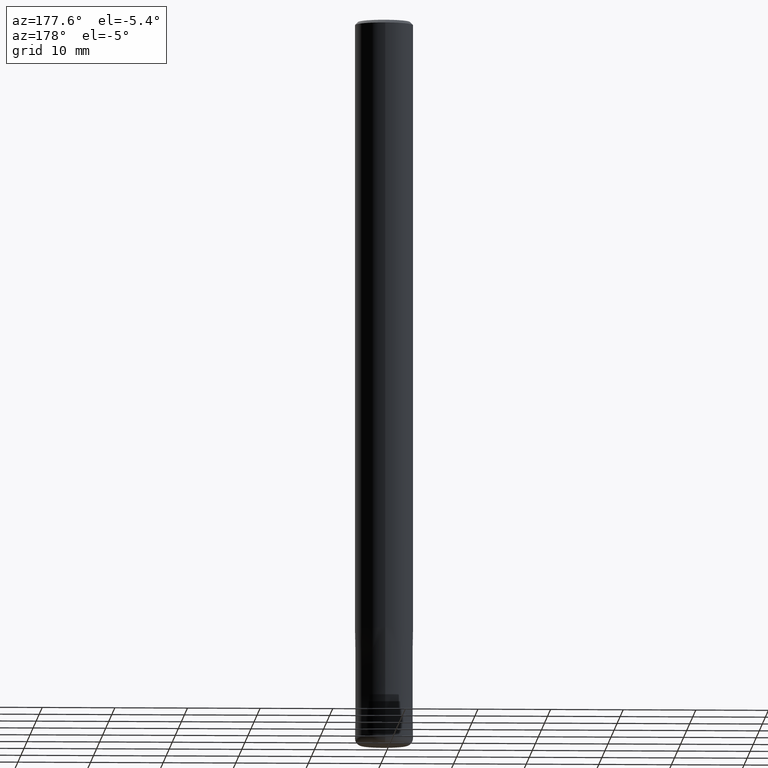
[diagram: clean part render]
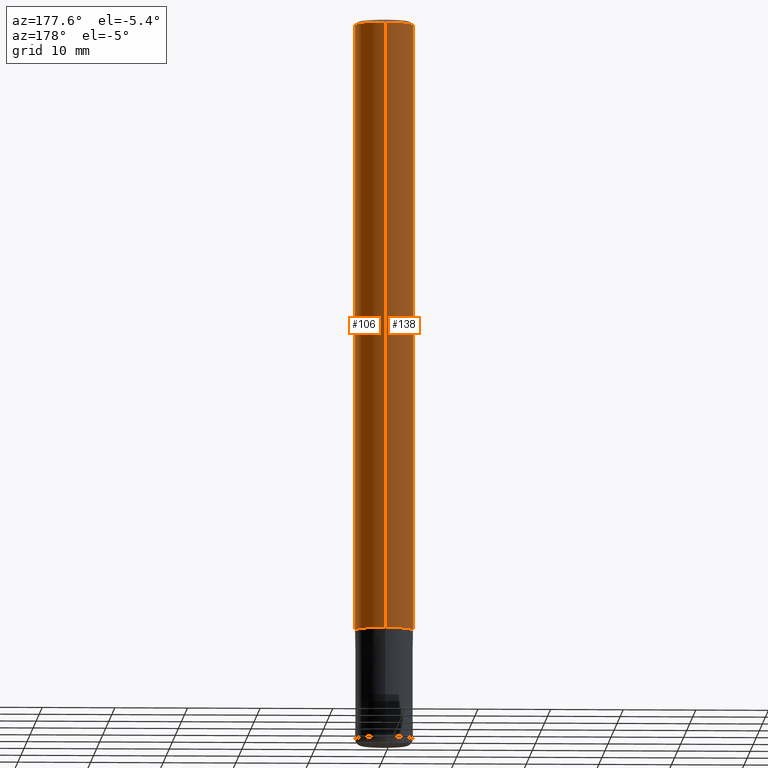
[diagram: same view with one multi-face feature highlighted, each face labeled with its STEP entity id]
A machine part, auxiliary view. The highlighted faces form ONE feature: a constant-radius fillet chain: 2 tangent blend faces with common blend radius 4 mm. The faces share edges in the B-rep.
Their STEP definitions:
[1] entity #106 (Cylinder):
#68=VERTEX_POINT('',#172);
#78=EDGE_CURVE('',#68,#118,#183,.T.);
#100=VERTEX_POINT('',#207);
#102=EDGE_CURVE('',#100,#68,#209,.T.);
#104=EDGE_CURVE('',#100,#124,#211,.T.);
#106=ADVANCED_FACE('',(#213),#214,.T.);
#118=VERTEX_POINT('',#228);
#124=VERTEX_POINT('',#235);
#140=EDGE_CURVE('',#118,#124,#254,.T.);
#172=CARTESIAN_POINT('',(0.0,4.0,-84.0));
#183=CIRCLE('',#293,4.0);
#207=CARTESIAN_POINT('',(0.0,4.0,-0.400000000000006));
#209=LINE('',#329,#330);
#211=CIRCLE('',#333,4.0);
#213=FACE_OUTER_BOUND('',#335,.T.);
#214=CYLINDRICAL_SURFACE('',#336,4.0);
#228=CARTESIAN_POINT('',(4.89842541528951E-016,-4.0,-84.0));
#235=CARTESIAN_POINT('',(4.89842541528951E-016,-4.0,-0.400000000000006));
#254=LINE('',#383,#384);
#293=AXIS2_PLACEMENT_3D('',#420,#421,#422);
#329=CARTESIAN_POINT('',(-4.89842541528951E-016,4.0,-42.2));
#330=VECTOR('',#454,1.0);
#333=AXIS2_PLACEMENT_3D('',#455,#456,#457);
#335=EDGE_LOOP('',(#459,#460,#461,#462));
#336=AXIS2_PLACEMENT_3D('',#463,#464,#465);
#383=CARTESIAN_POINT('',(4.89842541528951E-016,-4.0,-42.2));
#384=VECTOR('',#518,1.0);
#420=CARTESIAN_POINT('',(0.0,0.0,-84.0));
#421=DIRECTION('',(0.0,0.0,-1.0));
#422=DIRECTION('',(0.0,1.0,0.0));
#454=DIRECTION('',(0.0,0.0,-1.0));
#455=CARTESIAN_POINT('',(0.0,0.0,-0.400000000000006));
#456=DIRECTION('',(0.0,0.0,-1.0));
#457=DIRECTION('',(0.0,1.0,0.0));
#459=ORIENTED_EDGE('',*,*,#102,.F.);
#460=ORIENTED_EDGE('',*,*,#104,.T.);
#461=ORIENTED_EDGE('',*,*,#140,.F.);
#462=ORIENTED_EDGE('',*,*,#78,.F.);
#463=CARTESIAN_POINT('',(0.0,0.0,-42.2));
#464=DIRECTION('',(-0.0,-0.0,1.0));
#465=DIRECTION('',(0.0,1.0,0.0));
#518=DIRECTION('',(-0.0,-0.0,1.0));
[2] entity #138 (Cylinder):
#68=VERTEX_POINT('',#172);
#80=EDGE_CURVE('',#118,#68,#185,.T.);
#82=EDGE_CURVE('',#124,#100,#187,.T.);
#100=VERTEX_POINT('',#207);
#102=EDGE_CURVE('',#100,#68,#209,.T.);
#118=VERTEX_POINT('',#228);
#124=VERTEX_POINT('',#235);
#138=ADVANCED_FACE('',(#251),#252,.T.);
#140=EDGE_CURVE('',#118,#124,#254,.T.);
#172=CARTESIAN_POINT('',(0.0,4.0,-84.0));
#185=CIRCLE('',#296,4.0);
#187=CIRCLE('',#299,4.0);
#207=CARTESIAN_POINT('',(0.0,4.0,-0.400000000000006));
#209=LINE('',#329,#330);
#228=CARTESIAN_POINT('',(4.89842541528951E-016,-4.0,-84.0));
#235=CARTESIAN_POINT('',(4.89842541528951E-016,-4.0,-0.400000000000006));
#251=FACE_OUTER_BOUND('',#379,.T.);
#252=CYLINDRICAL_SURFACE('',#380,4.0);
#254=LINE('',#383,#384);
#296=AXIS2_PLACEMENT_3D('',#423,#424,#425);
#299=AXIS2_PLACEMENT_3D('',#426,#427,#428);
#329=CARTESIAN_POINT('',(-4.89842541528951E-016,4.0,-42.2));
#330=VECTOR('',#454,1.0);
#379=EDGE_LOOP('',(#511,#512,#513,#514));
#380=AXIS2_PLACEMENT_3D('',#515,#516,#517);
#383=CARTESIAN_POINT('',(4.89842541528951E-016,-4.0,-42.2));
#384=VECTOR('',#518,1.0);
#423=CARTESIAN_POINT('',(0.0,0.0,-84.0));
#424=DIRECTION('',(0.0,0.0,-1.0));
#425=DIRECTION('',(0.0,1.0,0.0));
#426=CARTESIAN_POINT('',(0.0,0.0,-0.400000000000006));
#427=DIRECTION('',(0.0,0.0,-1.0));
#428=DIRECTION('',(0.0,1.0,0.0));
#454=DIRECTION('',(0.0,0.0,-1.0));
#511=ORIENTED_EDGE('',*,*,#102,.T.);
#512=ORIENTED_EDGE('',*,*,#80,.F.);
#513=ORIENTED_EDGE('',*,*,#140,.T.);
#514=ORIENTED_EDGE('',*,*,#82,.T.);
#515=CARTESIAN_POINT('',(0.0,0.0,-42.2));
#516=DIRECTION('',(-0.0,-0.0,1.0));
#517=DIRECTION('',(0.0,1.0,0.0));
#518=DIRECTION('',(-0.0,-0.0,1.0));